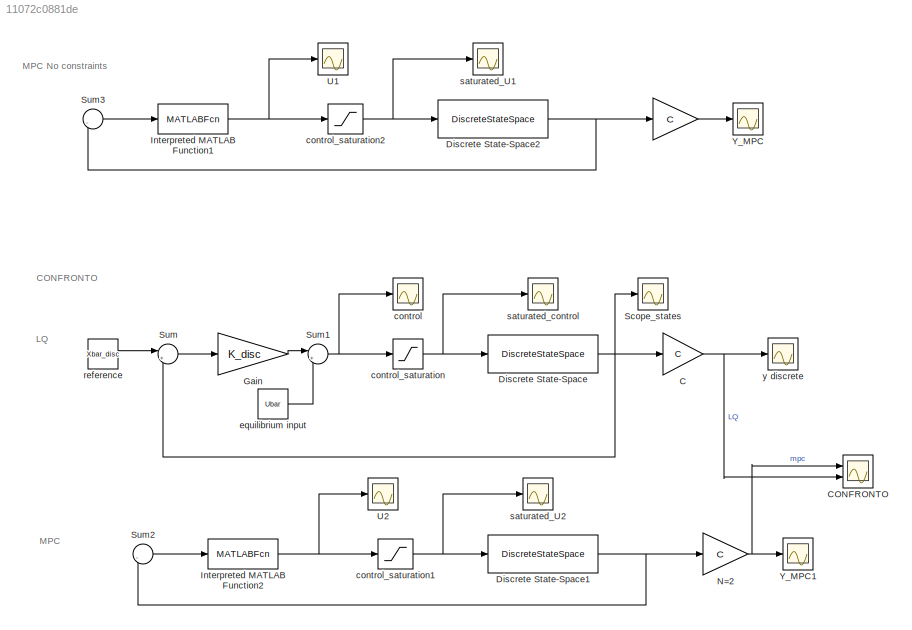
MODEL slx_11072c0881de
KIND model
CONFIG AbsTol = auto
CONFIG EnableMultiTasking = off
CONFIG FixedStep = auto
CONFIG MaxStep = auto
CONFIG MinStep = auto
CONFIG RelTol = 1e-3
CONFIG SampleTimeConstraint = Unconstrained
CONFIG SolverName = VariableStepAuto
CONFIG StartTime = 0.0
CONFIG StopTime = 10.0
BLOCK [Gain]  
  Gain = C
  Multiplication = Matrix(K*u) (u vector)
BLOCK [Gain] C
  Gain = C
  Multiplication = Matrix(K*u)
BLOCK [Scope] CONFRONTO
  Floating = off
  NumInputPorts = 2
  Ports = [2]
  ScopeSpecificationString = Simulink.scopes.TimeScopeBlockCfg('CurrentConfiguration', extmgr.ConfigurationSet(extmgr.Configuration('Core','General UI',true),extmgr.Configuration('Core','Source UI',true),extmgr.Configuration('Sources','WiredSimulink',true,'DataLoggingSaveFormat','StructureWithTime','DataLoggingLimitDataPoints',true,'DataLoggingDecimation','1','DataLoggingDecimateData',true,'DataLoggingVariableName','ScopeData...<+1818ch>
BLOCK [DiscreteStateSpace] Discrete State-Space
  A = A
  B = B
  C = C_states
  D = D_states
  SampleTime = Ts
BLOCK [DiscreteStateSpace] Discrete State-Space1
  A = A
  B = B
  C = C_states
  D = D_states
  InitialCondition = x0
  SampleTime = Ts
BLOCK [DiscreteStateSpace] Discrete State-Space2
  A = A
  B = B
  C = C_states
  D = D_states
  InitialCondition = x0
  SampleTime = Ts
BLOCK [Gain] Gain
  Gain = K_disc
  Multiplication = Matrix(K*u)
BLOCK [MATLABFcn] Interpreted MATLAB Function1
  MATLABFcn = mympc(A,B,Q,R,S,N,-inf,+inf,u,Ubar,Xbar);
  OutputDimensions = 1
  Ports = [1, 1]
BLOCK [MATLABFcn] Interpreted MATLAB Function2
  MATLABFcn = mympc(A,B,Q,R,S,N,-inf,+inf,u,Ubar,Xbar);
  OutputDimensions = 1
  Ports = [1, 1]
BLOCK [Gain] N=2
  Gain = C
  Multiplication = Matrix(K*u) (u vector)
BLOCK [Scope] Scope_states
  Floating = off
  NumInputPorts = 1
  Ports = [1]
  ScopeSpecificationString = Simulink.scopes.TimeScopeBlockCfg('CurrentConfiguration', extmgr.ConfigurationSet(extmgr.Configuration('Core','General UI',true),extmgr.Configuration('Core','Source UI',true),extmgr.Configuration('Sources','WiredSimulink',true,'DataLoggingSaveFormat','StructureWithTime','DataLoggingLimitDataPoints',true,'DataLoggingDecimation','1','DataLoggingDecimateData',true,'DataLoggingVariableName','ScopeData...<+2094ch>
BLOCK [Sum] Sum
  Inputs = |+-
  Ports = [2, 1]
BLOCK [Sum] Sum1
  Inputs = |++
  Ports = [2, 1]
BLOCK [Sum] Sum2
  Inputs = |-+
  Ports = [2, 1]
BLOCK [Sum] Sum3
  Inputs = |-+
  Ports = [2, 1]
BLOCK [Scope] U1
  Floating = off
  NumInputPorts = 1
  Ports = [1]
  ScopeSpecificationString = Simulink.scopes.TimeScopeBlockCfg('CurrentConfiguration', extmgr.ConfigurationSet(extmgr.Configuration('Core','General UI',true),extmgr.Configuration('Core','Source UI',true),extmgr.Configuration('Sources','WiredSimulink',true,'DataLoggingSaveFormat','StructureWithTime','DataLoggingLimitDataPoints',true,'DataLoggingDecimation','1','DataLoggingDecimateData',true,'DataLoggingVariableName','ScopeData...<+1803ch>  <repeated x3 — deduplicated; at blocks: U1, U2, saturated_U2>
BLOCK [Scope] U2
  Floating = off
  NumInputPorts = 1
  Ports = [1]
BLOCK [Scope] Y_MPC
  Floating = off
  NumInputPorts = 1
  Ports = [1]
  ScopeSpecificationString = Simulink.scopes.TimeScopeBlockCfg('CurrentConfiguration', extmgr.ConfigurationSet(extmgr.Configuration('Core','General UI',true),extmgr.Configuration('Core','Source UI',true),extmgr.Configuration('Sources','WiredSimulink',true,'DataLoggingVariableName','ScopeData2','DataLoggingSaveFormat','StructureWithTime','DataLoggingLimitDataPoints',true,'DataLoggingDecimation','1','DataLoggingDecimateData',tr...<+1767ch>
BLOCK [Scope] Y_MPC1
  Floating = off
  NumInputPorts = 1
  Ports = [1]
  ScopeSpecificationString = Simulink.scopes.TimeScopeBlockCfg('CurrentConfiguration', extmgr.ConfigurationSet(extmgr.Configuration('Core','General UI',true),extmgr.Configuration('Core','Source UI',true),extmgr.Configuration('Sources','WiredSimulink',true,'DataLoggingVariableName','ScopeData7','DataLoggingSaveFormat','StructureWithTime','DataLoggingLimitDataPoints',true,'DataLoggingDecimation','1','DataLoggingDecimateData',tr...<+1768ch>
BLOCK [Scope] control
  Floating = off
  NumInputPorts = 1
  Ports = [1]
  ScopeSpecificationString = Simulink.scopes.TimeScopeBlockCfg('CurrentConfiguration', extmgr.ConfigurationSet(extmgr.Configuration('Core','General UI',true),extmgr.Configuration('Core','Source UI',true),extmgr.Configuration('Sources','WiredSimulink',true,'DataLoggingVariableName','ScopeData3','DataLoggingSaveFormat','StructureWithTime','DataLoggingLimitDataPoints',true,'DataLoggingDecimation','1','DataLoggingDecimateData',tr...<+1698ch>
BLOCK [Saturate] control_saturation
  LowerLimit = U_min
  UpperLimit = U_max
BLOCK [Saturate] control_saturation1
  LowerLimit = U_min
  UpperLimit = U_max
BLOCK [Saturate] control_saturation2
  LowerLimit = U_min
  UpperLimit = U_max
BLOCK [Constant] equilibrium input
  Value = Ubar
BLOCK [Constant] reference
  Value = Xbar_disc
BLOCK [Scope] saturated_U1
  Floating = off
  NumInputPorts = 1
  Ports = [1]
  ScopeSpecificationString = Simulink.scopes.TimeScopeBlockCfg('CurrentConfiguration', extmgr.ConfigurationSet(extmgr.Configuration('Core','General UI',true),extmgr.Configuration('Core','Source UI',true),extmgr.Configuration('Sources','WiredSimulink',true,'DataLoggingSaveFormat','StructureWithTime','DataLoggingLimitDataPoints',true,'DataLoggingDecimation','1','DataLoggingDecimateData',true),extmgr.Configuration('Visuals','Tim...<+1764ch>
BLOCK [Scope] saturated_U2
  Floating = off
  NumInputPorts = 1
  Ports = [1]
BLOCK [Scope] saturated_control
  Floating = off
  NumInputPorts = 1
  Ports = [1]
  ScopeSpecificationString = Simulink.scopes.TimeScopeBlockCfg('CurrentConfiguration', extmgr.ConfigurationSet(extmgr.Configuration('Core','General UI',true),extmgr.Configuration('Core','Source UI',true),extmgr.Configuration('Sources','WiredSimulink',true,'DataLoggingSaveFormat','StructureWithTime','DataLoggingLimitDataPoints',true,'DataLoggingDecimation','1','DataLoggingDecimateData',true,'DataLoggingVariableName','ScopeData...<+1987ch>
BLOCK [Scope] y discrete
  Floating = off
  NumInputPorts = 1
  Ports = [1]
  ScopeSpecificationString = Simulink.scopes.TimeScopeBlockCfg('CurrentConfiguration', extmgr.ConfigurationSet(extmgr.Configuration('Core','General UI',true),extmgr.Configuration('Core','Source UI',true),extmgr.Configuration('Sources','WiredSimulink',true,'DataLoggingSaveFormat','StructureWithTime','DataLoggingLimitDataPoints',true,'DataLoggingDecimation','1','DataLoggingDecimateData',true,'DataLoggingVariableName','ScopeData...<+1770ch>
ANNOTATION (root): LQ
ANNOTATION (root): MPC No constraints
ANNOTATION (root): MPC
ANNOTATION (root): CONFRONTO
LINE  :1 -> Y_MPC:1
NET C:1 -> CONFRONTO:2, y discrete:1
NET Discrete State-Space1:1 -> N=2:1, Sum2:2
NET Discrete State-Space2:1 ->  :1, Sum3:2
NET Discrete State-Space:1 -> C:1, Scope_states:1, Sum:2
LINE Gain:1 -> Sum1:1
NET Interpreted MATLAB Function1:1 -> U1:1, control_saturation2:1
NET Interpreted MATLAB Function2:1 -> U2:1, control_saturation1:1
NET N=2:1 -> CONFRONTO:1, Y_MPC1:1
NET Sum1:1 -> control:1, control_saturation:1
LINE Sum2:1 -> Interpreted MATLAB Function2:1
LINE Sum3:1 -> Interpreted MATLAB Function1:1
LINE Sum:1 -> Gain:1
NET control_saturation1:1 -> Discrete State-Space1:1, saturated_U2:1
NET control_saturation2:1 -> Discrete State-Space2:1, saturated_U1:1
NET control_saturation:1 -> Discrete State-Space:1, saturated_control:1
LINE equilibrium input:1 -> Sum1:2
LINE reference:1 -> Sum:1
note: NET lines group one-source signal fan-out (src -> all destinations, sorted); 1:1 wires keep LINE
